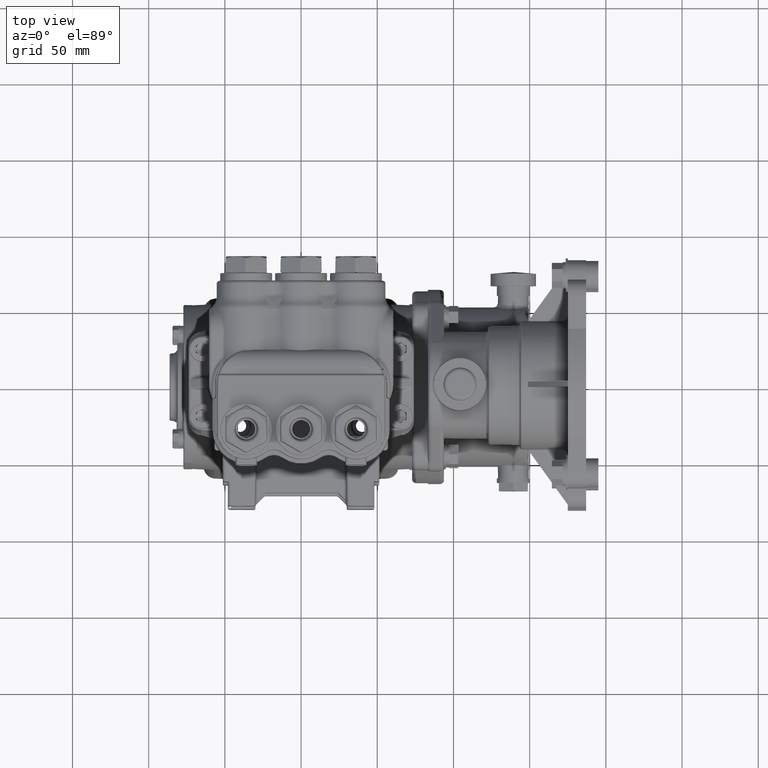
[diagram: clean part render]
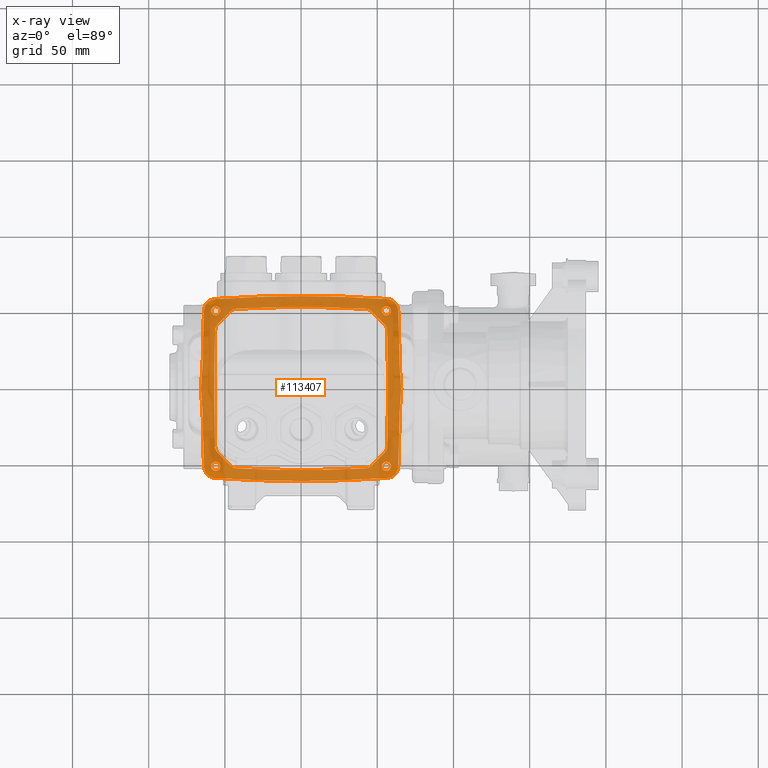
[diagram: x-ray — body ghosted, one internal face saturated and labeled with its STEP entity id]
A machine part, top view, then the same camera in x-ray: the body is ghosted and one INTERNAL B-rep face — a face not visible from any outside direction — is saturated and labeled: STEP entity #113407.
In plain terms, the highlighted planar face has unit normal (0, 0, 1).
Its self-contained STEP definition (entity closure, byte-faithful):
#188 = AXIS2_PLACEMENT_3D ( 'NONE', #45095, #64900, #100805 ) ;
#191 = DIRECTION ( 'NONE',  ( -4.382719174871368785E-18, -5.544652149419485530E-17, -1.000000000000000000 ) ) ;
#324 = CARTESIAN_POINT ( 'NONE',  ( -2.547149771677712948, 0.5335505165541405415, -2.165354330708661568 ) ) ;
#488 = CARTESIAN_POINT ( 'NONE',  ( -2.452307318315940066, 2.182010947410366608, -2.165354330708662456 ) ) ;
#1067 = CARTESIAN_POINT ( 'NONE',  ( 2.289817794028676357, -2.298164523753958299, -2.165354330708661124 ) ) ;
#1401 = FACE_BOUND ( 'NONE', #92035, .T. ) ;
#1731 = CARTESIAN_POINT ( 'NONE',  ( -2.244982747217354913, 2.308120096729284310, -2.165354330708662012 ) ) ;
#1995 = VERTEX_POINT ( 'NONE', #65140 ) ;
#2219 = CARTESIAN_POINT ( 'NONE',  ( -1.665298053507381582, -2.061429151741539734, -2.165354330708661568 ) ) ;
#2625 = PLANE ( 'NONE',  #85350 ) ;
#2671 = EDGE_LOOP ( 'NONE', ( #111203, #95438 ) ) ;
#2805 = ORIENTED_EDGE ( 'NONE', *, *, #25026, .T. ) ;
#2863 = EDGE_CURVE ( 'NONE', #1995, #114994, #24233, .T. ) ;
#3058 = CARTESIAN_POINT ( 'NONE',  ( 2.322834645669291209, 2.007874015748031482, -2.165354330708661568 ) ) ;
#3125 = CARTESIAN_POINT ( 'NONE',  ( -2.222123512036451753, -1.500081608862754656, -2.165354330708661568 ) ) ;
#3869 = CARTESIAN_POINT ( 'NONE',  ( 2.226398268440926920, 2.309454876264962042, -2.165354330708661568 ) ) ;
#4219 = CIRCLE ( 'NONE', #81349, 30.92519685039370358 ) ;
#4739 = DIRECTION ( 'NONE',  ( -1.000000000000000000, 1.216804434989171568E-13, 5.302127228476524804E-18 ) ) ;
#4848 = CARTESIAN_POINT ( 'NONE',  ( 2.213280055852036465, -1.559389366902613316, -2.165354330708661568 ) ) ;
#5475 = AXIS2_PLACEMENT_3D ( 'NONE', #14609, #88293, #4739 ) ;
#5997 = CARTESIAN_POINT ( 'NONE',  ( 1.799391997228569018, 2.013058564604782052, -2.165354330708661124 ) ) ;
#6222 = CARTESIAN_POINT ( 'NONE',  ( 2.587034883247977035, -0.05213171969899274560, -2.165354330708661124 ) ) ;
#6678 = VERTEX_POINT ( 'NONE', #59252 ) ;
#7210 = CARTESIAN_POINT ( 'NONE',  ( -2.555849678708232542, -0.4261577759929520703, -2.165354330708661568 ) ) ;
#7304 = CARTESIAN_POINT ( 'NONE',  ( 2.189577504191285051, -1.614138010126627165, -2.165354330708661124 ) ) ;
#7439 = EDGE_CURVE ( 'NONE', #65958, #9938, #38713, .T. ) ;
#7590 = ORIENTED_EDGE ( 'NONE', *, *, #93458, .T. ) ;
#7783 = CARTESIAN_POINT ( 'NONE',  ( 1.722516782334198693, -2.053050197350273720, -2.165354330708661568 ) ) ;
#7856 = DIRECTION ( 'NONE',  ( 4.382719174871368785E-18, 5.544652149419485530E-17, 1.000000000000000000 ) ) ;
#8007 = AXIS2_PLACEMENT_3D ( 'NONE', #60498, #82651, #120352 ) ;
#8030 = ORIENTED_EDGE ( 'NONE', *, *, #80222, .T. ) ;
#8680 = EDGE_CURVE ( 'NONE', #54880, #89713, #99272, .T. ) ;
#9122 = CARTESIAN_POINT ( 'NONE',  ( 2.298606430290601743, -2.295446092816229022, -2.165354330708661124 ) ) ;
#9126 = CARTESIAN_POINT ( 'NONE',  ( 2.204724409448818534, 2.007874015748031482, -2.165354330708661568 ) ) ;
#9483 = CARTESIAN_POINT ( 'NONE',  ( -0.3714624763966135612, -2.389304942255948028, -2.165354330708661568 ) ) ;
#9565 = EDGE_LOOP ( 'NONE', ( #16388, #2805 ) ) ;
#9675 = ORIENTED_EDGE ( 'NONE', *, *, #119691, .F. ) ;
#9756 = CARTESIAN_POINT ( 'NONE',  ( -2.487175133690011197, 2.117236140601214345, -2.165354330708661124 ) ) ;
#9911 = VERTEX_POINT ( 'NONE', #61899 ) ;
#9938 = VERTEX_POINT ( 'NONE', #25394 ) ;
#9977 = B_SPLINE_CURVE_WITH_KNOTS ( 'NONE', 3,
 ( #90379, #61250, #116976, #110145, #25374, #32817, #108912, #53211, #34031, #6222, #108298, #32189, #33415, #23537, #70575, #60642, #71184, #43928 ),
 .UNSPECIFIED., .F., .F.,
 ( 4, 2, 2, 2, 2, 2, 2, 2, 4 ),
 ( 0.000000000000000000, 0.004069019700830752914, 0.008138039401661505828, 0.01220705910249225874, 0.01627607880332301166, 0.02034509850415376631, 0.02441411820498451749, 0.02848313790581526866, 0.03255215760664602331 ),
 .UNSPECIFIED. ) ;
#10866 = CARTESIAN_POINT ( 'NONE',  ( -1.775351250857132968, -2.029543694701740897, -2.165354330708661124 ) ) ;
#10932 = ORIENTED_EDGE ( 'NONE', *, *, #68252, .T. ) ;
#10939 = CARTESIAN_POINT ( 'NONE',  ( 2.467332750831509269, -2.159359728066985618, -2.165354330708661124 ) ) ;
#10940 = B_SPLINE_CURVE_WITH_KNOTS ( 'NONE', 3,
 ( #62288, #5997, #43698, #72198, #86353, #93809 ),
 .UNSPECIFIED., .F., .F.,
 ( 4, 2, 4 ),
 ( 0.000000000000000000, 0.5000000000000000000, 1.000000000000000000 ),
 .UNSPECIFIED. ) ;
#10945 = AXIS2_PLACEMENT_3D ( 'NONE', #115411, #50400, #12670 ) ;
#11289 = CARTESIAN_POINT ( 'NONE',  ( 2.409857958945318401, 2.230889108303422574, -2.165354330708661568 ) ) ;
#11548 = CARTESIAN_POINT ( 'NONE',  ( 2.365679031425900192, -2.264536306372213481, -2.165354330708660235 ) ) ;
#11583 = CARTESIAN_POINT ( 'NONE',  ( 2.086614173228346303, 2.007874015748031482, -2.165354330708661568 ) ) ;
#11589 = CARTESIAN_POINT ( 'NONE',  ( -2.429114812346702568, 2.210929334946595493, -2.165354330708661124 ) ) ;
#12504 = CARTESIAN_POINT ( 'NONE',  ( 2.429114812346701235, 2.210929334946595493, -2.165354330708661124 ) ) ;
#12670 = DIRECTION ( 'NONE',  ( 1.000000000000000000, 0.000000000000000000, -5.302127228476524804E-18 ) ) ;
#13513 = CARTESIAN_POINT ( 'NONE',  ( -2.219270343645315169, 1.594488188976378007, -2.165354330708661568 ) ) ;
#13730 = CARTESIAN_POINT ( 'NONE',  ( 2.507699095000501810, 2.018276345781059522, -2.165354330708661568 ) ) ;
#13836 = EDGE_CURVE ( 'NONE', #44902, #29265, #91047, .T. ) ;
#14108 = CARTESIAN_POINT ( 'NONE',  ( 2.172724549754320833, -1.638897227845798499, -2.165354330708661568 ) ) ;
#14374 = CARTESIAN_POINT ( 'NONE',  ( -2.204724409448818534, 2.007874015748031482, -2.165354330708661568 ) ) ;
#14609 = CARTESIAN_POINT ( 'NONE',  ( 48.97637795275590378, -1.200613654401857639E-16, -2.165354330708661568 ) ) ;
#15468 = VERTEX_POINT ( 'NONE', #3869 ) ;
#15809 = CARTESIAN_POINT ( 'NONE',  ( -2.507699084655221622, -2.018276609678203659, -2.165354330708661568 ) ) ;
#15929 = CIRCLE ( 'NONE', #8007, 0.1181102362204725503 ) ;
#16017 = CARTESIAN_POINT ( 'NONE',  ( 1.485094011898409727, -2.356032690953608455, -2.165354330708661124 ) ) ;
#16388 = ORIENTED_EDGE ( 'NONE', *, *, #100170, .T. ) ;
#16512 = CARTESIAN_POINT ( 'NONE',  ( -2.204724409448818534, -2.007874015748031482, -2.165354330708661568 ) ) ;
#16555 = CARTESIAN_POINT ( 'NONE',  ( 0.3714619736455342935, 2.389304923639928635, -2.165354330708661124 ) ) ;
#16572 = CARTESIAN_POINT ( 'NONE',  ( 2.222123512036451753, -1.500081608862754656, -2.165354330708661568 ) ) ;
#16894 = EDGE_CURVE ( 'NONE', #87919, #15468, #50420, .T. ) ;
#17088 = CARTESIAN_POINT ( 'NONE',  ( -2.547179575223919912, -0.5330576677038848521, -2.165354330708661124 ) ) ;
#17651 = VERTEX_POINT ( 'NONE', #53973 ) ;
#17657 = CARTESIAN_POINT ( 'NONE',  ( 1.694170780839115098, -2.059872118457770185, -2.165354330708661124 ) ) ;
#17681 = CARTESIAN_POINT ( 'NONE',  ( -2.577078491238841806, 0.2144346540354758746, -2.165354330708661568 ) ) ;
#17825 = CARTESIAN_POINT ( 'NONE',  ( -48.97637795275590378, -1.200613654401857639E-16, -2.165354330708661124 ) ) ;
#18236 = CARTESIAN_POINT ( 'NONE',  ( -2.315981751020904866, -2.289185744994254978, -2.165354330708661124 ) ) ;
#18577 = DIRECTION ( 'NONE',  ( -0.7082089982551068585, 0.7060028433303210393, -3.604152067120824219E-17 ) ) ;
#18784 = ORIENTED_EDGE ( 'NONE', *, *, #32831, .F. ) ;
#18850 = CARTESIAN_POINT ( 'NONE',  ( -2.263153763336887003, -2.305104183887489278, -2.165354330708661124 ) ) ;
#18894 = CARTESIAN_POINT ( 'NONE',  ( -2.543265006702944753, 0.6403266331639345665, -2.165354330708661568 ) ) ;
#19266 = VERTEX_POINT ( 'NONE', #3058 ) ;
#19314 = CARTESIAN_POINT ( 'NONE',  ( 2.222123512036451753, -1.500081608862754656, -2.165354330708661568 ) ) ;
#19421 = ORIENTED_EDGE ( 'NONE', *, *, #86948, .F. ) ;
#19621 = CARTESIAN_POINT ( 'NONE',  ( 2.244982819985745337, -2.308120272099379200, -2.165354330708661568 ) ) ;
#19660 = ORIENTED_EDGE ( 'NONE', *, *, #69910, .T. ) ;
#19775 = CARTESIAN_POINT ( 'NONE',  ( 1.665298053507381582, -2.061429151741539734, -2.165354330708661568 ) ) ;
#20037 = CARTESIAN_POINT ( 'NONE',  ( -2.196897490499831740, 1.600820636837663624, -2.165354330708661124 ) ) ;
#20235 = CARTESIAN_POINT ( 'NONE',  ( 2.388121428136718016, -2.248513551110576714, -2.165354330708661124 ) ) ;
#20974 = AXIS2_PLACEMENT_3D ( 'NONE', #25366, #63726, #45757 ) ;
#21231 = ORIENTED_EDGE ( 'NONE', *, *, #25764, .F. ) ;
#21843 = VERTEX_POINT ( 'NONE', #115417 ) ;
#22143 = EDGE_CURVE ( 'NONE', #121190, #73926, #89135, .T. ) ;
#23120 = CARTESIAN_POINT ( 'NONE',  ( 2.507699084655221622, -2.018276609678203659, -2.165354330708661568 ) ) ;
#23537 = CARTESIAN_POINT ( 'NONE',  ( 2.561316277943267661, -0.3727956487488476300, -2.165354330708661124 ) ) ;
#23741 = CARTESIAN_POINT ( 'NONE',  ( -5.806167078742581744E-34, 2.389304932947936333, -2.165354330708661568 ) ) ;
#23845 = CARTESIAN_POINT ( 'NONE',  ( 2.543265006702933650, -0.6403266331650486753, -2.165354330708661568 ) ) ;
#23938 = DIRECTION ( 'NONE',  ( 1.000000000000000000, 0.000000000000000000, 0.000000000000000000 ) ) ;
#24148 = ORIENTED_EDGE ( 'NONE', *, *, #96044, .F. ) ;
#24233 = CIRCLE ( 'NONE', #119123, 51.52362204724409622 ) ;
#24427 = B_SPLINE_CURVE_WITH_KNOTS ( 'NONE', 3,
 ( #102425, #17657, #7783, #55973, #91314, #121604 ),
 .UNSPECIFIED., .F., .F.,
 ( 4, 2, 4 ),
 ( 0.000000000000000000, 0.5000000000000000000, 1.000000000000000000 ),
 .UNSPECIFIED. ) ;
#24833 = CARTESIAN_POINT ( 'NONE',  ( 1.665298053507368259, 2.061429151741544619, -2.165354330708661568 ) ) ;
#24964 = CARTESIAN_POINT ( 'NONE',  ( -2.226398268440926920, 2.309454876264962042, -2.165354330708661568 ) ) ;
#25026 = EDGE_CURVE ( 'NONE', #67221, #104822, #80284, .T. ) ;
#25366 = CARTESIAN_POINT ( 'NONE',  ( 48.97637795275590378, -1.200613654401857639E-16, -2.165354330708661568 ) ) ;
#25374 = CARTESIAN_POINT ( 'NONE',  ( 2.561200214332288727, 0.3739337529956902051, -2.165354330708661568 ) ) ;
#25394 = CARTESIAN_POINT ( 'NONE',  ( -2.222123512036461079, 1.500081608862758653, -2.165354330708661568 ) ) ;
#25440 = CARTESIAN_POINT ( 'NONE',  ( -1.819865019293845032, -1.992649318428517002, -2.165354330708661568 ) ) ;
#25764 = EDGE_CURVE ( 'NONE', #34583, #21843, #99594, .T. ) ;
#25817 = CARTESIAN_POINT ( 'NONE',  ( 2.219825723293632702, -1.530001510944977605, -2.165354330708661124 ) ) ;
#26353 = B_SPLINE_CURVE_WITH_KNOTS ( 'NONE', 3,
 ( #2219, #107352, #39935, #10866, #41149, #32464 ),
 .UNSPECIFIED., .F., .F.,
 ( 4, 2, 4 ),
 ( -1.000000000000000000, -0.5000000000000000000, -0.000000000000000000 ),
 .UNSPECIFIED. ) ;
#27414 = CARTESIAN_POINT ( 'NONE',  ( 2.299159994477764979, 2.295707594504622140, -2.165354330708661568 ) ) ;
#27547 = CARTESIAN_POINT ( 'NONE',  ( -2.555764106600797891, 0.4270891406804709911, -2.165354330708661124 ) ) ;
#27643 = AXIS2_PLACEMENT_3D ( 'NONE', #103515, #191, #56474 ) ;
#27666 = CARTESIAN_POINT ( 'NONE',  ( 2.315981751020904866, -2.289185744994252314, -2.165354330708661124 ) ) ;
#27704 = CARTESIAN_POINT ( 'NONE',  ( -2.507699095000501810, 2.018276345781059522, -2.165354330708661568 ) ) ;
#27952 = EDGE_CURVE ( 'NONE', #121883, #65958, #43743, .T. ) ;
#28316 = CARTESIAN_POINT ( 'NONE',  ( -2.435291354646366813, 2.203911179097557405, -2.165354330708661568 ) ) ;
#28391 = EDGE_CURVE ( 'NONE', #87919, #100673, #79084, .T. ) ;
#28470 = VERTEX_POINT ( 'NONE', #43516 ) ;
#28711 = CARTESIAN_POINT ( 'NONE',  ( 2.221684838214001978, 1.515053755850700457, -2.165354330708661124 ) ) ;
#28899 = CARTESIAN_POINT ( 'NONE',  ( 2.349811279969611810, -2.273828208019544217, -2.165354330708661124 ) ) ;
#29240 = CARTESIAN_POINT ( 'NONE',  ( 2.244982747217353580, 2.308120096729282977, -2.165354330708661568 ) ) ;
#29265 = VERTEX_POINT ( 'NONE', #120419 ) ;
#29326 = CARTESIAN_POINT ( 'NONE',  ( -2.226399550609211797, -2.309455044778845334, -2.165354330708661124 ) ) ;
#29497 = CARTESIAN_POINT ( 'NONE',  ( 2.507699084655221622, -2.018276609678203659, -2.165354330708661568 ) ) ;
#29542 = CARTESIAN_POINT ( 'NONE',  ( -2.299159994477765423, 2.295707594504620808, -2.165354330708661568 ) ) ;
#29826 = FACE_BOUND ( 'NONE', #2671, .T. ) ;
#30140 = CARTESIAN_POINT ( 'NONE',  ( -2.395949701857929437, 2.242892435977617893, -2.165354330708661568 ) ) ;
#30157 = VERTEX_POINT ( 'NONE', #84133 ) ;
#30356 = ORIENTED_EDGE ( 'NONE', *, *, #82579, .T. ) ;
#30450 = CARTESIAN_POINT ( 'NONE',  ( 2.487175133690011197, 2.117236140601213457, -2.165354330708661124 ) ) ;
#31046 = CARTESIAN_POINT ( 'NONE',  ( 2.435291354646365480, 2.203911179097557849, -2.165354330708661124 ) ) ;
#31446 = B_SPLINE_CURVE_WITH_KNOTS ( 'NONE', 3,
 ( #29497, #66654, #67880, #94489, #93906, #74730, #10939, #38800, #47439, #58555, #96317, #85837, #20235, #11548, #28899, #67260, #27666, #9122, #1067, #104991, #19621, #95096 ),
 .UNSPECIFIED., .F., .F.,
 ( 4, 2, 2, 2, 2, 2, 2, 2, 2, 2, 4 ),
 ( 2.017058999513409408E-16, 0.001417373402076405357, 0.002834746804152609052, 0.004252120206228813398, 0.005669493608305016877, 0.006378180309343119483, 0.007086867010381220355, 0.008504240412457404752, 0.009212927113495503889, 0.009921613814533601292, 0.01133898721660979783 ),
 .UNSPECIFIED. ) ;
#32189 = CARTESIAN_POINT ( 'NONE',  ( 2.577239816458734456, -0.2126723048731455901, -2.165354330708661124 ) ) ;
#32268 = CARTESIAN_POINT ( 'NONE',  ( 2.467526665887781689, 2.159020891313297774, -2.165354330708661568 ) ) ;
#32464 = CARTESIAN_POINT ( 'NONE',  ( -1.819865019293845032, -1.992649318428517002, -2.165354330708661568 ) ) ;
#32817 = CARTESIAN_POINT ( 'NONE',  ( 2.571859199282208852, 0.2676042894716209597, -2.165354330708661124 ) ) ;
#32818 = VECTOR ( 'NONE', #18577, 39.37007874015748854 ) ;
#32831 = EDGE_CURVE ( 'NONE', #61355, #121883, #84190, .T. ) ;
#33415 = CARTESIAN_POINT ( 'NONE',  ( 2.572012682349583468, -0.2660530168385782934, -2.165354330708661568 ) ) ;
#33811 = CIRCLE ( 'NONE', #188, 30.92519685039370358 ) ;
#34031 = CARTESIAN_POINT ( 'NONE',  ( 2.586966824328970738, 0.05466901610737712192, -2.165354330708661568 ) ) ;
#34235 = CARTESIAN_POINT ( 'NONE',  ( -0.3714619736455342935, 2.389304923639931300, -2.165354330708661124 ) ) ;
#34356 = CARTESIAN_POINT ( 'NONE',  ( -2.496376326611512209, -2.091466151007959073, -2.165354330708661124 ) ) ;
#34583 = VERTEX_POINT ( 'NONE', #41274 ) ;
#34972 = CARTESIAN_POINT ( 'NONE',  ( -2.467332750831502164, -2.159359728066980733, -2.165354330708661568 ) ) ;
#35105 = CARTESIAN_POINT ( 'NONE',  ( 2.226398268440926920, 2.309454876264962042, -2.165354330708661568 ) ) ;
#35157 = DIRECTION ( 'NONE',  ( 1.000000000000000000, 1.216804434989171568E-13, -5.302127228476524804E-18 ) ) ;
#35570 = CARTESIAN_POINT ( 'NONE',  ( 2.208785680751318203, 1.573256141254134599, -2.165354330708661568 ) ) ;
#35578 = CARTESIAN_POINT ( 'NONE',  ( -2.435460192130129986, -2.204361731283805970, -2.165354330708660680 ) ) ;
#36178 = DIRECTION ( 'NONE',  ( 1.000000000000000000, 0.000000000000000000, 0.000000000000000000 ) ) ;
#36406 = CARTESIAN_POINT ( 'NONE',  ( 1.855892260071492439, -2.336067316222202983, -2.165354330708661124 ) ) ;
#36678 = CIRCLE ( 'NONE', #10945, 51.52362204724409622 ) ;
#37334 = CARTESIAN_POINT ( 'NONE',  ( 2.366018722821676246, 2.264324669307098858, -2.165354330708661568 ) ) ;
#37618 = CARTESIAN_POINT ( 'NONE',  ( -2.446878316306273504, 2.189458419480110329, -2.165354330708661568 ) ) ;
#37682 = ORIENTED_EDGE ( 'NONE', *, *, #48483, .T. ) ;
#37993 = CARTESIAN_POINT ( 'NONE',  ( -2.213359582976154094, 1.559097908158796342, -2.165354330708661124 ) ) ;
#38017 = CARTESIAN_POINT ( 'NONE',  ( -2.365679031425900636, -2.264536306372213925, -2.165354330708661568 ) ) ;
#38059 = CARTESIAN_POINT ( 'NONE',  ( -2.561200214332288727, 0.3739337529956902051, -2.165354330708661568 ) ) ;
#38129 = DIRECTION ( 'NONE',  ( 4.382719174871368785E-18, 5.544652149419485530E-17, 1.000000000000000000 ) ) ;
#38232 = CARTESIAN_POINT ( 'NONE',  ( -2.504556795817793446, 2.055155352968323079, -2.165354330708661568 ) ) ;
#38629 = CARTESIAN_POINT ( 'NONE',  ( -2.388121428136717128, -2.248513551110574937, -2.165354330708661124 ) ) ;
#38713 = CIRCLE ( 'NONE', #20974, 51.22047244094488150 ) ;
#38800 = CARTESIAN_POINT ( 'NONE',  ( 2.446962882100052195, -2.190037674934417034, -2.165354330708661124 ) ) ;
#39003 = AXIS2_PLACEMENT_3D ( 'NONE', #9126, #66051, #86459 ) ;
#39074 = CARTESIAN_POINT ( 'NONE',  ( -1.665298053507368259, 2.061429151741544619, -2.165354330708661568 ) ) ;
#39695 = DIRECTION ( 'NONE',  ( -1.000000000000000000, 0.000000000000000000, 0.000000000000000000 ) ) ;
#39890 = DIRECTION ( 'NONE',  ( 4.382719174871368785E-18, 5.544652149419485530E-17, 1.000000000000000000 ) ) ;
#39935 = CARTESIAN_POINT ( 'NONE',  ( -1.722516782334198693, -2.053050197350273720, -2.165354330708661568 ) ) ;
#40172 = CARTESIAN_POINT ( 'NONE',  ( -2.196755736665824799, -1.601098465890254952, -2.165354330708661568 ) ) ;
#40366 = CARTESIAN_POINT ( 'NONE',  ( 2.504556795817793002, 2.055155352968322191, -2.165354330708661124 ) ) ;
#40592 = B_SPLINE_CURVE_WITH_KNOTS ( 'NONE', 3,
 ( #95460, #114047, #112223, #86207, #9483, #85001 ),
 .UNSPECIFIED., .F., .F.,
 ( 4, 2, 4 ),
 ( 0.000000000000000000, 0.02829432713783162912, 0.05658865427566325823 ),
 .UNSPECIFIED. ) ;
#40779 = CARTESIAN_POINT ( 'NONE',  ( -2.221682597448173535, -1.515130234257967556, -2.165354330708661568 ) ) ;
#40946 = DIRECTION ( 'NONE',  ( 1.000000000000000000, 0.000000000000000000, -4.382719174871368785E-18 ) ) ;
#40962 = CARTESIAN_POINT ( 'NONE',  ( 2.476258197580701648, 2.142836032510803790, -2.165354330708661568 ) ) ;
#41149 = CARTESIAN_POINT ( 'NONE',  ( -1.799393356314523462, -2.013057209752563192, -2.165354330708661124 ) ) ;
#41274 = CARTESIAN_POINT ( 'NONE',  ( 2.086614173228346303, -2.007874015748031482, -2.165354330708661568 ) ) ;
#41649 = CARTESIAN_POINT ( 'NONE',  ( 2.226399550609211797, -2.309455044778845334, -2.165354330708661568 ) ) ;
#42271 = B_SPLINE_CURVE_WITH_KNOTS ( 'NONE', 3,
 ( #62358, #110610, #14108, #7304, #101323, #51830, #4848, #25817, #63572, #16572 ),
 .UNSPECIFIED., .F., .F.,
 ( 4, 2, 2, 2, 4 ),
 ( 0.000000000000000000, 0.2500000000000000000, 0.5000000000000000000, 0.7500000000000000000, 1.000000000000000000 ),
 .UNSPECIFIED. ) ;
#42591 = DIRECTION ( 'NONE',  ( -4.382719174871368785E-18, -5.544652149419485530E-17, -1.000000000000000000 ) ) ;
#42684 = AXIS2_PLACEMENT_3D ( 'NONE', #55325, #46053, #36178 ) ;
#42966 = CIRCLE ( 'NONE', #5475, 51.52362204724409622 ) ;
#43516 = CARTESIAN_POINT ( 'NONE',  ( -2.507699095000501810, 2.018276345781059522, -2.165354330708661568 ) ) ;
#43698 = CARTESIAN_POINT ( 'NONE',  ( 1.775335066388156413, 2.029552431919218858, -2.165354330708661568 ) ) ;
#43743 = B_SPLINE_CURVE_WITH_KNOTS ( 'NONE', 3,
 ( #80404, #70465, #49438, #87215, #40172, #68634, #79164, #106376, #40779, #59313 ),
 .UNSPECIFIED., .F., .F.,
 ( 4, 2, 2, 2, 4 ),
 ( -1.000000000000000000, -0.7500000000000000000, -0.5000000000000000000, -0.2500000000000000000, -0.000000000000000000 ),
 .UNSPECIFIED. ) ;
#43928 = CARTESIAN_POINT ( 'NONE',  ( 2.543265006702933650, -0.6403266331650486753, -2.165354330708661568 ) ) ;
#44324 = CIRCLE ( 'NONE', #113505, 51.52362204724409622 ) ;
#44462 = CARTESIAN_POINT ( 'NONE',  ( 5.806167078742583454E-34, -2.389304932947937665, -2.165354330708661568 ) ) ;
#44866 = CARTESIAN_POINT ( 'NONE',  ( -2.506969314277190275, -2.036892271272477295, -2.165354330708661568 ) ) ;
#44902 = VERTEX_POINT ( 'NONE', #97506 ) ;
#45095 = CARTESIAN_POINT ( 'NONE',  ( 7.003180397897975922E-33, -28.81889763779527414, -2.165354330708659791 ) ) ;
#45425 = ORIENTED_EDGE ( 'NONE', *, *, #97738, .F. ) ;
#45489 = CIRCLE ( 'NONE', #27643, 0.1181102362204725503 ) ;
#45555 = VERTEX_POINT ( 'NONE', #63026 ) ;
#45598 = CARTESIAN_POINT ( 'NONE',  ( 1.485093522122145515, 2.356044648000701791, -2.165354330708661124 ) ) ;
#45757 = DIRECTION ( 'NONE',  ( 1.000000000000000000, 0.000000000000000000, -5.333507996854134523E-18 ) ) ;
#45825 = CARTESIAN_POINT ( 'NONE',  ( -1.819865019293829489, 1.992649318428512339, -2.165354330708661568 ) ) ;
#46053 = DIRECTION ( 'NONE',  ( 4.382719174871368785E-18, 5.544652149419485530E-17, 1.000000000000000000 ) ) ;
#46109 = CARTESIAN_POINT ( 'NONE',  ( -2.584672947388187314, 0.1079688259028910441, -2.165354330708661124 ) ) ;
#46403 = LINE ( 'NONE', #65593, #32818 ) ;
#46667 = CARTESIAN_POINT ( 'NONE',  ( 2.189739141668258782, 1.613874688228873922, -2.165354330708661568 ) ) ;
#46674 = CARTESIAN_POINT ( 'NONE',  ( -2.416204707833613075, -2.224306327292282504, -2.165354330708660680 ) ) ;
#46876 = CARTESIAN_POINT ( 'NONE',  ( -2.467526665887781245, 2.159020891313295998, -2.165354330708661124 ) ) ;
#46939 = ORIENTED_EDGE ( 'NONE', *, *, #122334, .T. ) ;
#47255 = CARTESIAN_POINT ( 'NONE',  ( -2.172818252056210930, 1.638785034891005798, -2.165354330708661124 ) ) ;
#47278 = CARTESIAN_POINT ( 'NONE',  ( -2.324611947169684001, -2.285622141269472163, -2.165354330708661568 ) ) ;
#47439 = CARTESIAN_POINT ( 'NONE',  ( 2.435460192130133095, -2.204361731283808190, -2.165354330708661124 ) ) ;
#47878 = CARTESIAN_POINT ( 'NONE',  ( -2.289817794028677245, -2.298164523753958743, -2.165354330708661124 ) ) ;
#48483 = EDGE_CURVE ( 'NONE', #17651, #71789, #4219, .T. ) ;
#49438 = CARTESIAN_POINT ( 'NONE',  ( -2.172724549754320833, -1.638897227845798499, -2.165354330708661568 ) ) ;
#49554 = ORIENTED_EDGE ( 'NONE', *, *, #119528, .F. ) ;
#49604 = FACE_BOUND ( 'NONE', #109775, .T. ) ;
#50067 = DIRECTION ( 'NONE',  ( 0.7082089982551051932, 0.7060028433303228157, -4.224928298414653321E-17 ) ) ;
#50114 = ORIENTED_EDGE ( 'NONE', *, *, #28391, .F. ) ;
#50400 = DIRECTION ( 'NONE',  ( -4.382719174871368785E-18, -5.544652149419485530E-17, -1.000000000000000000 ) ) ;
#50420 = B_SPLINE_CURVE_WITH_KNOTS ( 'NONE', 3,
 ( #82797, #16555, #66002, #45598, #65404, #35105 ),
 .UNSPECIFIED., .F., .F.,
 ( 4, 2, 4 ),
 ( 4.077884107204853351E-25, 0.02830452656250993099, 0.05660905312501986197 ),
 .UNSPECIFIED. ) ;
#50763 = CARTESIAN_POINT ( 'NONE',  ( 2.204724409448818534, -2.007874015748031482, -2.165354330708661568 ) ) ;
#51634 = ORIENTED_EDGE ( 'NONE', *, *, #16894, .T. ) ;
#51830 = CARTESIAN_POINT ( 'NONE',  ( 2.208677786958054057, -1.573556101159421017, -2.165354330708661124 ) ) ;
#52088 = DIRECTION ( 'NONE',  ( 1.000000000000000000, 0.000000000000000000, 0.000000000000000000 ) ) ;
#52712 = VECTOR ( 'NONE', #50067, 39.37007874015748143 ) ;
#52998 = ORIENTED_EDGE ( 'NONE', *, *, #118615, .T. ) ;
#53211 = CARTESIAN_POINT ( 'NONE',  ( 2.584672947388187314, 0.1079688259028910441, -2.165354330708661124 ) ) ;
#53320 = DIRECTION ( 'NONE',  ( 4.382719174871368785E-18, 5.544652149419485530E-17, 1.000000000000000000 ) ) ;
#53537 = EDGE_CURVE ( 'NONE', #77858, #69467, #42271, .T. ) ;
#53973 = CARTESIAN_POINT ( 'NONE',  ( -1.665298053507381582, -2.061429151741539734, -2.165354330708661568 ) ) ;
#54880 = VERTEX_POINT ( 'NONE', #45825 ) ;
#54945 = VERTEX_POINT ( 'NONE', #86021 ) ;
#55278 = EDGE_CURVE ( 'NONE', #100673, #28470, #93706, .T. ) ;
#55325 = CARTESIAN_POINT ( 'NONE',  ( -2.204724409448818534, -2.007874015748031482, -2.165354330708661568 ) ) ;
#55351 = B_SPLINE_CURVE_WITH_KNOTS ( 'NONE', 3,
 ( #121572, #28711, #73936, #94312, #35570, #113501, #46667, #112285, #104203, #64668 ),
 .UNSPECIFIED., .F., .F.,
 ( 4, 2, 2, 2, 4 ),
 ( 0.000000000000000000, 0.2500000000000000000, 0.5000000000000000000, 0.7500000000000000000, 1.000000000000000000 ),
 .UNSPECIFIED. ) ;
#55389 = CARTESIAN_POINT ( 'NONE',  ( -2.584798791261073259, -0.1056861792405178191, -2.165354330708661568 ) ) ;
#55973 = CARTESIAN_POINT ( 'NONE',  ( 1.775351250857132968, -2.029543694701740897, -2.165354330708661124 ) ) ;
#56141 = VECTOR ( 'NONE', #88407, 39.37007874015748854 ) ;
#56284 = DIRECTION ( 'NONE',  ( 4.382719174871368785E-18, 5.544652149419485530E-17, 1.000000000000000000 ) ) ;
#56354 = CARTESIAN_POINT ( 'NONE',  ( -2.226398268440926920, 2.309454876264962042, -2.165354330708661568 ) ) ;
#56474 = DIRECTION ( 'NONE',  ( -1.000000000000000000, 0.000000000000000000, 0.000000000000000000 ) ) ;
#56602 = CARTESIAN_POINT ( 'NONE',  ( -2.572012682349583468, -0.2660530168385782934, -2.165354330708661568 ) ) ;
#56884 = EDGE_LOOP ( 'NONE', ( #21231, #24148 ) ) ;
#57135 = CARTESIAN_POINT ( 'NONE',  ( -2.208785680751318203, 1.573256141254134599, -2.165354330708661568 ) ) ;
#57171 = ORIENTED_EDGE ( 'NONE', *, *, #8680, .F. ) ;
#57260 = CARTESIAN_POINT ( 'NONE',  ( 48.97637795275590378, -1.200613654401857639E-16, -2.165354330708661568 ) ) ;
#58351 = CARTESIAN_POINT ( 'NONE',  ( -2.222123512036461079, 1.500081608862758653, -2.165354330708661568 ) ) ;
#58555 = CARTESIAN_POINT ( 'NONE',  ( 2.416204707833615739, -2.224306327292284280, -2.165354330708660680 ) ) ;
#58958 = CARTESIAN_POINT ( 'NONE',  ( -2.221684838214001978, 1.515053755850700457, -2.165354330708661124 ) ) ;
#59252 = CARTESIAN_POINT ( 'NONE',  ( 1.819865019293845032, -1.992649318428517002, -2.165354330708661568 ) ) ;
#59313 = CARTESIAN_POINT ( 'NONE',  ( -2.222123512036451753, -1.500081608862754656, -2.165354330708661568 ) ) ;
#59898 = LINE ( 'NONE', #13513, #56141 ) ;
#60071 = CARTESIAN_POINT ( 'NONE',  ( -2.322834645669291209, 2.007874015748031482, -2.165354330708661568 ) ) ;
#60133 = EDGE_CURVE ( 'NONE', #71789, #6678, #24427, .T. ) ;
#60498 = CARTESIAN_POINT ( 'NONE',  ( -2.204724409448818534, 2.007874015748031482, -2.165354330708661568 ) ) ;
#60642 = CARTESIAN_POINT ( 'NONE',  ( 2.547179575223919912, -0.5330576677038848521, -2.165354330708661124 ) ) ;
#60652 = DIRECTION ( 'NONE',  ( -4.382719174871368785E-18, -5.544652149419485530E-17, -1.000000000000000000 ) ) ;
#60711 = FACE_OUTER_BOUND ( 'NONE', #76011, .T. ) ;
#60964 = CARTESIAN_POINT ( 'NONE',  ( -2.086614173228346303, 2.007874015748031482, -2.165354330708661568 ) ) ;
#61250 = CARTESIAN_POINT ( 'NONE',  ( 2.543929612325298795, 0.5868535420895685251, -2.165354330708661124 ) ) ;
#61355 = VERTEX_POINT ( 'NONE', #25440 ) ;
#61434 = VERTEX_POINT ( 'NONE', #24833 ) ;
#61692 = ORIENTED_EDGE ( 'NONE', *, *, #55278, .F. ) ;
#61899 = CARTESIAN_POINT ( 'NONE',  ( 2.222123512036461079, 1.500081608862758653, -2.165354330708661568 ) ) ;
#62288 = CARTESIAN_POINT ( 'NONE',  ( 1.819865019293829489, 1.992649318428512339, -2.165354330708661568 ) ) ;
#62358 = CARTESIAN_POINT ( 'NONE',  ( 2.152598785039734341, -1.660952057778923185, -2.165354330708661568 ) ) ;
#63026 = CARTESIAN_POINT ( 'NONE',  ( -2.226399550609211797, -2.309455044778845334, -2.165354330708661124 ) ) ;
#63572 = CARTESIAN_POINT ( 'NONE',  ( 2.221682597448173535, -1.515130234257967556, -2.165354330708661568 ) ) ;
#63726 = DIRECTION ( 'NONE',  ( -4.382719174871368785E-18, -5.544652149419485530E-17, -1.000000000000000000 ) ) ;
#64668 = CARTESIAN_POINT ( 'NONE',  ( 2.152598785039741891, 1.660952057778921409, -2.165354330708661568 ) ) ;
#64900 = DIRECTION ( 'NONE',  ( 4.382719174871368785E-18, 5.544652149419485530E-17, 1.000000000000000000 ) ) ;
#65140 = CARTESIAN_POINT ( 'NONE',  ( 2.507699095000501810, 2.018276345781059522, -2.165354330708661568 ) ) ;
#65320 = CARTESIAN_POINT ( 'NONE',  ( -2.587034883247977035, -0.05213171969899274560, -2.165354330708661124 ) ) ;
#65404 = CARTESIAN_POINT ( 'NONE',  ( 1.855891039598183134, 2.336065548150336291, -2.165354330708661568 ) ) ;
#65593 = CARTESIAN_POINT ( 'NONE',  ( 2.219270343645315169, 1.594488188976378007, -2.165354330708661568 ) ) ;
#65958 = VERTEX_POINT ( 'NONE', #3125 ) ;
#66002 = CARTESIAN_POINT ( 'NONE',  ( 0.7429143685551328202, 2.382658802404135745, -2.165354330708661568 ) ) ;
#66051 = DIRECTION ( 'NONE',  ( -4.382719174871368785E-18, -5.544652149419485530E-17, -1.000000000000000000 ) ) ;
#66089 = CARTESIAN_POINT ( 'NONE',  ( -2.409857958945319734, 2.230889108303422574, -2.165354330708661568 ) ) ;
#66654 = CARTESIAN_POINT ( 'NONE',  ( 2.506969314277190275, -2.036892271272478183, -2.165354330708661568 ) ) ;
#67193 = DIRECTION ( 'NONE',  ( -1.000000000000000000, 0.000000000000000000, 5.302127228476524804E-18 ) ) ;
#67221 = VERTEX_POINT ( 'NONE', #121846 ) ;
#67260 = CARTESIAN_POINT ( 'NONE',  ( 2.324611947169681336, -2.285622141269469054, -2.165354330708661124 ) ) ;
#67301 = CARTESIAN_POINT ( 'NONE',  ( -2.496100249859894760, 2.090913945822137521, -2.165354330708661568 ) ) ;
#67712 = CARTESIAN_POINT ( 'NONE',  ( -2.409413171279608523, -2.230725825977086352, -2.165354330708661124 ) ) ;
#67834 = CARTESIAN_POINT ( 'NONE',  ( -2.507699084655221622, -2.018276609678203659, -2.165354330708661568 ) ) ;
#67880 = CARTESIAN_POINT ( 'NONE',  ( 2.504511574974339627, -2.055465809160683666, -2.165354330708661124 ) ) ;
#67892 = CARTESIAN_POINT ( 'NONE',  ( 2.152598785039734341, -1.660952057778923185, -2.165354330708661568 ) ) ;
#68224 = CARTESIAN_POINT ( 'NONE',  ( 2.490438297128289236, 2.108490976394182592, -2.165354330708661124 ) ) ;
#68252 = EDGE_CURVE ( 'NONE', #9911, #101952, #55351, .T. ) ;
#68634 = CARTESIAN_POINT ( 'NONE',  ( -2.208677786958054057, -1.573556101159421017, -2.165354330708661124 ) ) ;
#69406 = DIRECTION ( 'NONE',  ( 4.382719174871368785E-18, 5.544652149419484913E-17, 1.000000000000000000 ) ) ;
#69467 = VERTEX_POINT ( 'NONE', #19314 ) ;
#69841 = CARTESIAN_POINT ( 'NONE',  ( 2.204724409448818534, -2.007874015748031482, -2.165354330708661568 ) ) ;
#69910 = EDGE_CURVE ( 'NONE', #101952, #80735, #46403, .T. ) ;
#69913 = EDGE_CURVE ( 'NONE', #69467, #9911, #98009, .T. ) ;
#69971 = DIRECTION ( 'NONE',  ( -1.000000000000000000, 0.000000000000000000, 0.000000000000000000 ) ) ;
#70465 = CARTESIAN_POINT ( 'NONE',  ( -2.163204215270329467, -1.650379664719830330, -2.165354330708661124 ) ) ;
#70575 = CARTESIAN_POINT ( 'NONE',  ( 2.555849678708232542, -0.4261577759929520703, -2.165354330708661568 ) ) ;
#70877 = CARTESIAN_POINT ( 'NONE',  ( -1.665298053507368259, 2.061429151741544619, -2.165354330708661568 ) ) ;
#71184 = CARTESIAN_POINT ( 'NONE',  ( 2.543932861997212136, -0.5865920787521244906, -2.165354330708662012 ) ) ;
#71789 = VERTEX_POINT ( 'NONE', #19775 ) ;
#71988 = CARTESIAN_POINT ( 'NONE',  ( -5.806167078742581744E-34, 2.389304932947936333, -2.165354330708661568 ) ) ;
#72135 = EDGE_CURVE ( 'NONE', #81960, #19266, #108150, .T. ) ;
#72198 = CARTESIAN_POINT ( 'NONE',  ( 1.722511925836797575, 2.053050820824780853, -2.165354330708661124 ) ) ;
#72400 = AXIS2_PLACEMENT_3D ( 'NONE', #69841, #42591, #39695 ) ;
#72946 = CARTESIAN_POINT ( 'NONE',  ( 2.226399550609211797, -2.309455044778845334, -2.165354330708661568 ) ) ;
#73673 = DIRECTION ( 'NONE',  ( -1.000000000000000000, 0.000000000000000000, 5.333507996854134523E-18 ) ) ;
#73824 = CARTESIAN_POINT ( 'NONE',  ( 2.543265006702944753, 0.6403266331639345665, -2.165354330708661568 ) ) ;
#73897 = AXIS2_PLACEMENT_3D ( 'NONE', #50763, #60652, #69971 ) ;
#73926 = VERTEX_POINT ( 'NONE', #60964 ) ;
#73936 = CARTESIAN_POINT ( 'NONE',  ( 2.219844884467144119, 1.529848888678501106, -2.165354330708661568 ) ) ;
#74473 = CARTESIAN_POINT ( 'NONE',  ( 2.226398268440926920, 2.309454876264962042, -2.165354330708661568 ) ) ;
#74730 = CARTESIAN_POINT ( 'NONE',  ( 2.476246556831378953, -2.142842966116449421, -2.165354330708661568 ) ) ;
#75026 = EDGE_CURVE ( 'NONE', #85263, #30157, #113100, .T. ) ;
#75267 = ORIENTED_EDGE ( 'NONE', *, *, #83580, .F. ) ;
#75821 = CARTESIAN_POINT ( 'NONE',  ( -2.571859199282208852, 0.2676042894716209597, -2.165354330708661124 ) ) ;
#75989 = CARTESIAN_POINT ( 'NONE',  ( -2.506969276822858195, 2.036893229126701677, -2.165354330708661568 ) ) ;
#76011 = EDGE_LOOP ( 'NONE', ( #7590, #107993, #75267, #91116, #49554, #108709, #89734, #61692, #50114, #51634, #30356, #119802, #101934, #52998 ) ) ;
#76568 = EDGE_CURVE ( 'NONE', #80735, #61434, #10940, .T. ) ;
#77200 = CARTESIAN_POINT ( 'NONE',  ( -2.263466885730227141, 2.305047135850797790, -2.165354330708661568 ) ) ;
#77585 = CARTESIAN_POINT ( 'NONE',  ( -2.219844884467144119, 1.529848888678501106, -2.165354330708661568 ) ) ;
#77858 = VERTEX_POINT ( 'NONE', #67892 ) ;
#77972 = LINE ( 'NONE', #97119, #52712 ) ;
#78139 = CARTESIAN_POINT ( 'NONE',  ( 2.446878316306273060, 2.189458419480110329, -2.165354330708661568 ) ) ;
#78749 = CARTESIAN_POINT ( 'NONE',  ( 2.506969276822857307, 2.036893229126701232, -2.165354330708660680 ) ) ;
#79084 = B_SPLINE_CURVE_WITH_KNOTS ( 'NONE', 3,
 ( #23741, #34235, #99852, #110346, #120252, #24964 ),
 .UNSPECIFIED., .F., .F.,
 ( 4, 2, 4 ),
 ( 4.077884107204853351E-25, 0.02830452656250993793, 0.05660905312501987585 ),
 .UNSPECIFIED. ) ;
#79164 = CARTESIAN_POINT ( 'NONE',  ( -2.213280055852036465, -1.559389366902613316, -2.165354330708661568 ) ) ;
#79366 = ORIENTED_EDGE ( 'NONE', *, *, #111528, .T. ) ;
#79445 = EDGE_CURVE ( 'NONE', #19266, #81960, #45489, .T. ) ;
#80222 = EDGE_CURVE ( 'NONE', #61434, #89713, #33811, .T. ) ;
#80284 = CIRCLE ( 'NONE', #42684, 0.1181102362204725503 ) ;
#80311 = AXIS2_PLACEMENT_3D ( 'NONE', #93460, #56284, #73673 ) ;
#80404 = CARTESIAN_POINT ( 'NONE',  ( -2.152598785039734341, -1.660952057778923185, -2.165354330708661568 ) ) ;
#80735 = VERTEX_POINT ( 'NONE', #97702 ) ;
#81034 = CARTESIAN_POINT ( 'NONE',  ( 0.7429160555722730264, -2.382680048062204570, -2.165354330708660235 ) ) ;
#81349 = AXIS2_PLACEMENT_3D ( 'NONE', #114182, #39890, #85721 ) ;
#81960 = VERTEX_POINT ( 'NONE', #11583 ) ;
#82579 = EDGE_CURVE ( 'NONE', #15468, #1995, #105694, .T. ) ;
#82651 = DIRECTION ( 'NONE',  ( 4.382719174871368785E-18, 5.544652149419485530E-17, 1.000000000000000000 ) ) ;
#82661 = CARTESIAN_POINT ( 'NONE',  ( -2.446962882100044201, -2.190037674934412149, -2.165354330708661124 ) ) ;
#82797 = CARTESIAN_POINT ( 'NONE',  ( -5.806167078742581744E-34, 2.389304932947936333, -2.165354330708661568 ) ) ;
#83580 = EDGE_CURVE ( 'NONE', #45555, #30157, #40592, .T. ) ;
#83589 = DIRECTION ( 'NONE',  ( -0.7082089982551051932, 0.7060028433303228157, -3.604152067120835312E-17 ) ) ;
#84082 = CARTESIAN_POINT ( 'NONE',  ( -2.490438297128288792, 2.108490976394181704, -2.165354330708661568 ) ) ;
#84133 = CARTESIAN_POINT ( 'NONE',  ( 5.806167078742583454E-34, -2.389304932947937665, -2.165354330708661568 ) ) ;
#84190 = LINE ( 'NONE', #113206, #112268 ) ;
#84473 = CARTESIAN_POINT ( 'NONE',  ( -2.395374267148706160, -2.242822968506204440, -2.165354330708661124 ) ) ;
#84491 = ORIENTED_EDGE ( 'NONE', *, *, #53537, .T. ) ;
#85001 = CARTESIAN_POINT ( 'NONE',  ( 5.806167078742583454E-34, -2.389304932947937665, -2.165354330708661568 ) ) ;
#85127 = EDGE_CURVE ( 'NONE', #117710, #45555, #106654, .T. ) ;
#85263 = VERTEX_POINT ( 'NONE', #41649 ) ;
#85350 = AXIS2_PLACEMENT_3D ( 'NONE', #116431, #69406, #40946 ) ;
#85570 = CARTESIAN_POINT ( 'NONE',  ( 2.263466885730227585, 2.305047135850798234, -2.165354330708661568 ) ) ;
#85637 = CARTESIAN_POINT ( 'NONE',  ( -2.152598785039741891, 1.660952057778921409, -2.165354330708661568 ) ) ;
#85721 = DIRECTION ( 'NONE',  ( -1.000000000000000000, 0.000000000000000000, 0.000000000000000000 ) ) ;
#85837 = CARTESIAN_POINT ( 'NONE',  ( 2.395374267148707492, -2.242822968506206216, -2.165354330708661124 ) ) ;
#86021 = CARTESIAN_POINT ( 'NONE',  ( -2.152598785039741891, 1.660952057778921409, -2.165354330708661568 ) ) ;
#86207 = CARTESIAN_POINT ( 'NONE',  ( -0.7429160555722719161, -2.382680048062203237, -2.165354330708661124 ) ) ;
#86353 = CARTESIAN_POINT ( 'NONE',  ( 1.694168858347929296, 2.059872222132872022, -2.165354330708661568 ) ) ;
#86459 = DIRECTION ( 'NONE',  ( -1.000000000000000000, 0.000000000000000000, 0.000000000000000000 ) ) ;
#86494 = CARTESIAN_POINT ( 'NONE',  ( -2.226398268440926920, 2.309454876264962042, -2.165354330708661568 ) ) ;
#86520 = CIRCLE ( 'NONE', #98325, 0.1181102362204725503 ) ;
#86803 = CARTESIAN_POINT ( 'NONE',  ( 2.498518759619861029, 2.082038469294607452, -2.165354330708661124 ) ) ;
#86861 = CARTESIAN_POINT ( 'NONE',  ( -2.189739141668258782, 1.613874688228873922, -2.165354330708661568 ) ) ;
#86948 = EDGE_CURVE ( 'NONE', #54945, #54880, #59898, .T. ) ;
#87215 = CARTESIAN_POINT ( 'NONE',  ( -2.189577504191285051, -1.614138010126627165, -2.165354330708661124 ) ) ;
#87919 = VERTEX_POINT ( 'NONE', #71988 ) ;
#88293 = DIRECTION ( 'NONE',  ( 4.382719174871368785E-18, 5.544652149419485530E-17, 1.000000000000000000 ) ) ;
#88407 = DIRECTION ( 'NONE',  ( 0.7082089982551068585, 0.7060028433303210393, -4.224928298414644692E-17 ) ) ;
#89135 = CIRCLE ( 'NONE', #100967, 0.1181102362204725503 ) ;
#89713 = VERTEX_POINT ( 'NONE', #70877 ) ;
#89734 = ORIENTED_EDGE ( 'NONE', *, *, #91674, .F. ) ;
#90379 = CARTESIAN_POINT ( 'NONE',  ( 2.543265006702944753, 0.6403266331639345665, -2.165354330708661568 ) ) ;
#90842 = CARTESIAN_POINT ( 'NONE',  ( -1.722511925836797575, 2.053050820824780853, -2.165354330708661124 ) ) ;
#90868 = DIRECTION ( 'NONE',  ( -4.382719174871368785E-18, -5.544652149419485530E-17, -1.000000000000000000 ) ) ;
#91047 = B_SPLINE_CURVE_WITH_KNOTS ( 'NONE', 3,
 ( #18894, #120411, #324, #27547, #38059, #75821, #17681, #46109, #103647, #65320, #55389, #113557, #56602, #101844, #7210, #17088, #93166, #94365 ),
 .UNSPECIFIED., .F., .F.,
 ( 4, 2, 2, 2, 2, 2, 2, 2, 4 ),
 ( 0.000000000000000000, 0.004069019700830752914, 0.008138039401661505828, 0.01220705910249225874, 0.01627607880332301166, 0.02034509850415376631, 0.02441411820498451749, 0.02848313790581526866, 0.03255215760664602331 ),
 .UNSPECIFIED. ) ;
#91116 = ORIENTED_EDGE ( 'NONE', *, *, #85127, .F. ) ;
#91314 = CARTESIAN_POINT ( 'NONE',  ( 1.799393356314523462, -2.013057209752563192, -2.165354330708661124 ) ) ;
#91674 = EDGE_CURVE ( 'NONE', #28470, #44902, #42966, .T. ) ;
#92035 = EDGE_LOOP ( 'NONE', ( #9675, #37682, #103558, #46939, #84491, #95095, #10932, #19660, #99875, #8030, #57171, #19421, #45425, #99634, #106330, #18784 ) ) ;
#93166 = CARTESIAN_POINT ( 'NONE',  ( -2.543932861997212136, -0.5865920787521244906, -2.165354330708662012 ) ) ;
#93458 = EDGE_CURVE ( 'NONE', #93929, #85263, #31446, .T. ) ;
#93460 = CARTESIAN_POINT ( 'NONE',  ( -48.97637795275590378, -1.200613654401857639E-16, -2.165354330708661124 ) ) ;
#93706 = B_SPLINE_CURVE_WITH_KNOTS ( 'NONE', 3,
 ( #86494, #1731, #77200, #29542, #114939, #96361, #103210, #30140, #66089, #11589, #28316, #37618, #488, #46876, #94531, #9756, #84082, #67301, #112503, #38232, #75989, #27704 ),
 .UNSPECIFIED., .F., .F.,
 ( 4, 2, 2, 2, 2, 2, 2, 2, 2, 2, 4 ),
 ( 0.000000000000000000, 0.001417687121495792967, 0.002835374242991585934, 0.004253061364487378468, 0.005670748485983171869, 0.006379592046731067702, 0.007088435607478963535, 0.008506122728974756936, 0.009214966289722644963, 0.009923809850470531255, 0.01134149697196631772 ),
 .UNSPECIFIED. ) ;
#93732 = CARTESIAN_POINT ( 'NONE',  ( -2.349811279969614475, -2.273828208019547770, -2.165354330708662012 ) ) ;
#93809 = CARTESIAN_POINT ( 'NONE',  ( 1.665298053507368259, 2.061429151741544619, -2.165354330708661568 ) ) ;
#93906 = CARTESIAN_POINT ( 'NONE',  ( 2.490721398707852252, -2.108940945489631957, -2.165354330708660680 ) ) ;
#93929 = VERTEX_POINT ( 'NONE', #23120 ) ;
#94312 = CARTESIAN_POINT ( 'NONE',  ( 2.213359582976154094, 1.559097908158796342, -2.165354330708661124 ) ) ;
#94365 = CARTESIAN_POINT ( 'NONE',  ( -2.543265006702933650, -0.6403266331650486753, -2.165354330708661568 ) ) ;
#94489 = CARTESIAN_POINT ( 'NONE',  ( 2.496376326611521090, -2.091466151007961294, -2.165354330708661568 ) ) ;
#94531 = CARTESIAN_POINT ( 'NONE',  ( -2.476258197580702092, 2.142836032510803346, -2.165354330708661568 ) ) ;
#94841 = CARTESIAN_POINT ( 'NONE',  ( 2.349825550757514758, 2.273812584395075387, -2.165354330708661568 ) ) ;
#95095 = ORIENTED_EDGE ( 'NONE', *, *, #69913, .T. ) ;
#95096 = CARTESIAN_POINT ( 'NONE',  ( 2.226399550609211797, -2.309455044778845334, -2.165354330708661568 ) ) ;
#95438 = ORIENTED_EDGE ( 'NONE', *, *, #79445, .F. ) ;
#95460 = CARTESIAN_POINT ( 'NONE',  ( -2.226399550609211797, -2.309455044778845334, -2.165354330708661124 ) ) ;
#96044 = EDGE_CURVE ( 'NONE', #21843, #34583, #113832, .T. ) ;
#96317 = CARTESIAN_POINT ( 'NONE',  ( 2.409413171279609411, -2.230725825977088572, -2.165354330708660680 ) ) ;
#96361 = CARTESIAN_POINT ( 'NONE',  ( -2.349825550757512982, 2.273812584395070502, -2.165354330708661568 ) ) ;
#96670 = CARTESIAN_POINT ( 'NONE',  ( 2.496100249859893871, 2.090913945822137521, -2.165354330708661124 ) ) ;
#97119 = CARTESIAN_POINT ( 'NONE',  ( 2.219270343645323162, -1.594488188976376897, -2.165354330708661568 ) ) ;
#97214 = CARTESIAN_POINT ( 'NONE',  ( -1.694168858347929296, 2.059872222132872022, -2.165354330708661568 ) ) ;
#97281 = CARTESIAN_POINT ( 'NONE',  ( 2.452307318315939622, 2.182010947410366608, -2.165354330708661124 ) ) ;
#97506 = CARTESIAN_POINT ( 'NONE',  ( -2.543265006702944753, 0.6403266331639345665, -2.165354330708661568 ) ) ;
#97702 = CARTESIAN_POINT ( 'NONE',  ( 1.819865019293829489, 1.992649318428512339, -2.165354330708661568 ) ) ;
#97738 = EDGE_CURVE ( 'NONE', #9938, #54945, #116006, .T. ) ;
#98009 = CIRCLE ( 'NONE', #80311, 51.22047244094488150 ) ;
#98325 = AXIS2_PLACEMENT_3D ( 'NONE', #16512, #7856, #23938 ) ;
#98578 = VERTEX_POINT ( 'NONE', #23845 ) ;
#99272 = B_SPLINE_CURVE_WITH_KNOTS ( 'NONE', 3,
 ( #106496, #107096, #99506, #90842, #97214, #39074 ),
 .UNSPECIFIED., .F., .F.,
 ( 4, 2, 4 ),
 ( -1.000000000000000000, -0.5000000000000000000, -0.000000000000000000 ),
 .UNSPECIFIED. ) ;
#99506 = CARTESIAN_POINT ( 'NONE',  ( -1.775335066388156413, 2.029552431919218858, -2.165354330708661568 ) ) ;
#99594 = CIRCLE ( 'NONE', #73897, 0.1181102362204725503 ) ;
#99634 = ORIENTED_EDGE ( 'NONE', *, *, #7439, .F. ) ;
#99852 = CARTESIAN_POINT ( 'NONE',  ( -0.7429143685551328202, 2.382658802404133969, -2.165354330708661124 ) ) ;
#99875 = ORIENTED_EDGE ( 'NONE', *, *, #76568, .T. ) ;
#100170 = EDGE_CURVE ( 'NONE', #104822, #67221, #86520, .T. ) ;
#100673 = VERTEX_POINT ( 'NONE', #56354 ) ;
#100805 = DIRECTION ( 'NONE',  ( -1.000000000000000000, 0.000000000000000000, 0.000000000000000000 ) ) ;
#100967 = AXIS2_PLACEMENT_3D ( 'NONE', #14374, #53320, #52088 ) ;
#101323 = CARTESIAN_POINT ( 'NONE',  ( 2.196755736665824799, -1.601098465890254952, -2.165354330708661568 ) ) ;
#101844 = CARTESIAN_POINT ( 'NONE',  ( -2.561316277943267661, -0.3727956487488476300, -2.165354330708661124 ) ) ;
#101934 = ORIENTED_EDGE ( 'NONE', *, *, #111158, .T. ) ;
#101952 = VERTEX_POINT ( 'NONE', #104644 ) ;
#102425 = CARTESIAN_POINT ( 'NONE',  ( 1.665298053507381582, -2.061429151741539734, -2.165354330708661568 ) ) ;
#103210 = CARTESIAN_POINT ( 'NONE',  ( -2.366018722821676690, 2.264324669307097526, -2.165354330708661124 ) ) ;
#103515 = CARTESIAN_POINT ( 'NONE',  ( 2.204724409448818534, 2.007874015748031482, -2.165354330708661568 ) ) ;
#103558 = ORIENTED_EDGE ( 'NONE', *, *, #60133, .T. ) ;
#103647 = CARTESIAN_POINT ( 'NONE',  ( -2.586966824328970738, 0.05466901610737712192, -2.165354330708661568 ) ) ;
#104203 = CARTESIAN_POINT ( 'NONE',  ( 2.163258281448712683, 1.650325766963999241, -2.165354330708661568 ) ) ;
#104644 = CARTESIAN_POINT ( 'NONE',  ( 2.152598785039741891, 1.660952057778921409, -2.165354330708661568 ) ) ;
#104738 = CARTESIAN_POINT ( 'NONE',  ( 2.395949701857928549, 2.242892435977618337, -2.165354330708661568 ) ) ;
#104822 = VERTEX_POINT ( 'NONE', #114869 ) ;
#104991 = CARTESIAN_POINT ( 'NONE',  ( 2.263153763336886559, -2.305104183887488833, -2.165354330708661124 ) ) ;
#105414 = CARTESIAN_POINT ( 'NONE',  ( -2.163258281448712683, 1.650325766963999241, -2.165354330708661568 ) ) ;
#105694 = B_SPLINE_CURVE_WITH_KNOTS ( 'NONE', 3,
 ( #74473, #29240, #85570, #27414, #122103, #94841, #37334, #104738, #11289, #12504, #31046, #78139, #97281, #32268, #40962, #30450, #68224, #96670, #86803, #40366, #78749, #13730 ),
 .UNSPECIFIED., .F., .F.,
 ( 4, 2, 2, 2, 2, 2, 2, 2, 2, 2, 4 ),
 ( 0.000000000000000000, 0.001417687121495788630, 0.002835374242991577261, 0.004253061364487365457, 0.005670748485983154522, 0.006379592046731040814, 0.007088435607478927973, 0.008506122728974701425, 0.009214966289722594656, 0.009923809850470489621, 0.01134149697196627088 ),
 .UNSPECIFIED. ) ;
#106330 = ORIENTED_EDGE ( 'NONE', *, *, #27952, .F. ) ;
#106376 = CARTESIAN_POINT ( 'NONE',  ( -2.219825723293632702, -1.530001510944977605, -2.165354330708661124 ) ) ;
#106496 = CARTESIAN_POINT ( 'NONE',  ( -1.819865019293829489, 1.992649318428512339, -2.165354330708661568 ) ) ;
#106535 = CARTESIAN_POINT ( 'NONE',  ( -2.152598785039734341, -1.660952057778923185, -2.165354330708661568 ) ) ;
#106654 = B_SPLINE_CURVE_WITH_KNOTS ( 'NONE', 3,
 ( #15809, #44866, #119151, #34356, #109850, #119772, #34972, #82661, #35578, #46674, #67712, #84473, #38629, #38017, #93732, #47278, #18236, #122187, #47878, #18850, #112896, #29326 ),
 .UNSPECIFIED., .F., .F.,
 ( 4, 2, 2, 2, 2, 2, 2, 2, 2, 2, 4 ),
 ( 2.017058999513409408E-16, 0.001417373402076419668, 0.002834746804152637675, 0.004252120206228855899, 0.005669493608305074123, 0.006378180309343174995, 0.007086867010381276734, 0.008504240412457479345, 0.009212927113495569809, 0.009921613814533660272, 0.01133898721660983946 ),
 .UNSPECIFIED. ) ;
#107096 = CARTESIAN_POINT ( 'NONE',  ( -1.799391997228569018, 2.013058564604782052, -2.165354330708661124 ) ) ;
#107146 = FACE_BOUND ( 'NONE', #9565, .T. ) ;
#107352 = CARTESIAN_POINT ( 'NONE',  ( -1.694170780839115098, -2.059872118457770185, -2.165354330708661124 ) ) ;
#107993 = ORIENTED_EDGE ( 'NONE', *, *, #75026, .T. ) ;
#108150 = CIRCLE ( 'NONE', #39003, 0.1181102362204725503 ) ;
#108298 = CARTESIAN_POINT ( 'NONE',  ( 2.584798791261073259, -0.1056861792405178191, -2.165354330708661568 ) ) ;
#108709 = ORIENTED_EDGE ( 'NONE', *, *, #13836, .F. ) ;
#108912 = CARTESIAN_POINT ( 'NONE',  ( 2.577078491238841806, 0.2144346540354758746, -2.165354330708661568 ) ) ;
#109775 = EDGE_LOOP ( 'NONE', ( #79366, #111475 ) ) ;
#109850 = CARTESIAN_POINT ( 'NONE',  ( -2.490721398707856249, -2.108940945489633734, -2.165354330708661568 ) ) ;
#110145 = CARTESIAN_POINT ( 'NONE',  ( 2.555764106600797891, 0.4270891406804709911, -2.165354330708661124 ) ) ;
#110346 = CARTESIAN_POINT ( 'NONE',  ( -1.485093522122145515, 2.356044648000702679, -2.165354330708660235 ) ) ;
#110610 = CARTESIAN_POINT ( 'NONE',  ( 2.163204215270329467, -1.650379664719830330, -2.165354330708661124 ) ) ;
#111158 = EDGE_CURVE ( 'NONE', #114994, #98578, #9977, .T. ) ;
#111203 = ORIENTED_EDGE ( 'NONE', *, *, #72135, .F. ) ;
#111475 = ORIENTED_EDGE ( 'NONE', *, *, #22143, .T. ) ;
#111528 = EDGE_CURVE ( 'NONE', #73926, #121190, #15929, .T. ) ;
#112223 = CARTESIAN_POINT ( 'NONE',  ( -1.485094011898408617, -2.356032690953610231, -2.165354330708661568 ) ) ;
#112268 = VECTOR ( 'NONE', #83589, 39.37007874015748143 ) ;
#112285 = CARTESIAN_POINT ( 'NONE',  ( 2.172818252056210930, 1.638785034891005798, -2.165354330708661124 ) ) ;
#112503 = CARTESIAN_POINT ( 'NONE',  ( -2.498518759619862806, 2.082038469294607896, -2.165354330708661568 ) ) ;
#112896 = CARTESIAN_POINT ( 'NONE',  ( -2.244982819985744449, -2.308120272099377424, -2.165354330708661124 ) ) ;
#113100 = B_SPLINE_CURVE_WITH_KNOTS ( 'NONE', 3,
 ( #72946, #36406, #16017, #81034, #119361, #44462 ),
 .UNSPECIFIED., .F., .F.,
 ( 4, 2, 4 ),
 ( 0.000000000000000000, 0.02829432713783162912, 0.05658865427566325823 ),
 .UNSPECIFIED. ) ;
#113206 = CARTESIAN_POINT ( 'NONE',  ( -2.219270343645323162, -1.594488188976376897, -2.165354330708661568 ) ) ;
#113407 = ADVANCED_FACE ( 'NONE', ( #1401, #60711, #29826, #117041, #49604, #107146 ), #2625, .F. ) ;
#113501 = CARTESIAN_POINT ( 'NONE',  ( 2.196897490499831740, 1.600820636837663624, -2.165354330708661124 ) ) ;
#113505 = AXIS2_PLACEMENT_3D ( 'NONE', #57260, #38129, #67193 ) ;
#113557 = CARTESIAN_POINT ( 'NONE',  ( -2.577239816458734456, -0.2126723048731455901, -2.165354330708661124 ) ) ;
#113832 = CIRCLE ( 'NONE', #72400, 0.1181102362204725503 ) ;
#114047 = CARTESIAN_POINT ( 'NONE',  ( -1.855892260071492661, -2.336067316222200763, -2.165354330708661124 ) ) ;
#114182 = CARTESIAN_POINT ( 'NONE',  ( -7.003180397897975922E-33, 28.81889763779527414, -2.165354330708663344 ) ) ;
#114869 = CARTESIAN_POINT ( 'NONE',  ( -2.086614173228346303, -2.007874015748031482, -2.165354330708661568 ) ) ;
#114939 = CARTESIAN_POINT ( 'NONE',  ( -2.316431223136201201, 2.289459300434597999, -2.165354330708661124 ) ) ;
#114994 = VERTEX_POINT ( 'NONE', #73824 ) ;
#115411 = CARTESIAN_POINT ( 'NONE',  ( -48.97637795275590378, -1.200613654401857639E-16, -2.165354330708661124 ) ) ;
#115417 = CARTESIAN_POINT ( 'NONE',  ( 2.322834645669291209, -2.007874015748031482, -2.165354330708661568 ) ) ;
#116006 = B_SPLINE_CURVE_WITH_KNOTS ( 'NONE', 3,
 ( #58351, #58958, #77585, #37993, #57135, #20037, #86861, #47255, #105414, #85637 ),
 .UNSPECIFIED., .F., .F.,
 ( 4, 2, 2, 2, 4 ),
 ( -1.000000000000000000, -0.7500000000000000000, -0.5000000000000000000, -0.2500000000000000000, -0.000000000000000000 ),
 .UNSPECIFIED. ) ;
#116431 = CARTESIAN_POINT ( 'NONE',  ( 7.003180397897975922E-33, -28.81889763779527414, -2.165354330708659791 ) ) ;
#116976 = CARTESIAN_POINT ( 'NONE',  ( 2.547149771677712948, 0.5335505165541405415, -2.165354330708661568 ) ) ;
#117041 = FACE_BOUND ( 'NONE', #56884, .T. ) ;
#117710 = VERTEX_POINT ( 'NONE', #67834 ) ;
#118615 = EDGE_CURVE ( 'NONE', #98578, #93929, #36678, .T. ) ;
#119123 = AXIS2_PLACEMENT_3D ( 'NONE', #17825, #90868, #35157 ) ;
#119151 = CARTESIAN_POINT ( 'NONE',  ( -2.504511574974332522, -2.055465809160681445, -2.165354330708661568 ) ) ;
#119361 = CARTESIAN_POINT ( 'NONE',  ( 0.3714624763966135612, -2.389304942255947584, -2.165354330708661568 ) ) ;
#119528 = EDGE_CURVE ( 'NONE', #29265, #117710, #44324, .T. ) ;
#119691 = EDGE_CURVE ( 'NONE', #17651, #61355, #26353, .T. ) ;
#119772 = CARTESIAN_POINT ( 'NONE',  ( -2.476246556831379841, -2.142842966116451198, -2.165354330708661124 ) ) ;
#119802 = ORIENTED_EDGE ( 'NONE', *, *, #2863, .T. ) ;
#120252 = CARTESIAN_POINT ( 'NONE',  ( -1.855891039598183134, 2.336065548150338511, -2.165354330708661568 ) ) ;
#120352 = DIRECTION ( 'NONE',  ( 1.000000000000000000, 0.000000000000000000, 0.000000000000000000 ) ) ;
#120411 = CARTESIAN_POINT ( 'NONE',  ( -2.543929612325298795, 0.5868535420895685251, -2.165354330708661124 ) ) ;
#120419 = CARTESIAN_POINT ( 'NONE',  ( -2.543265006702933650, -0.6403266331650486753, -2.165354330708661568 ) ) ;
#121190 = VERTEX_POINT ( 'NONE', #60071 ) ;
#121572 = CARTESIAN_POINT ( 'NONE',  ( 2.222123512036461079, 1.500081608862758653, -2.165354330708661568 ) ) ;
#121604 = CARTESIAN_POINT ( 'NONE',  ( 1.819865019293845032, -1.992649318428517002, -2.165354330708661568 ) ) ;
#121846 = CARTESIAN_POINT ( 'NONE',  ( -2.322834645669291209, -2.007874015748031482, -2.165354330708661568 ) ) ;
#121883 = VERTEX_POINT ( 'NONE', #106535 ) ;
#122103 = CARTESIAN_POINT ( 'NONE',  ( 2.316431223136202533, 2.289459300434602440, -2.165354330708661568 ) ) ;
#122187 = CARTESIAN_POINT ( 'NONE',  ( -2.298606430290602631, -2.295446092816230799, -2.165354330708662012 ) ) ;
#122334 = EDGE_CURVE ( 'NONE', #6678, #77858, #77972, .T. ) ;